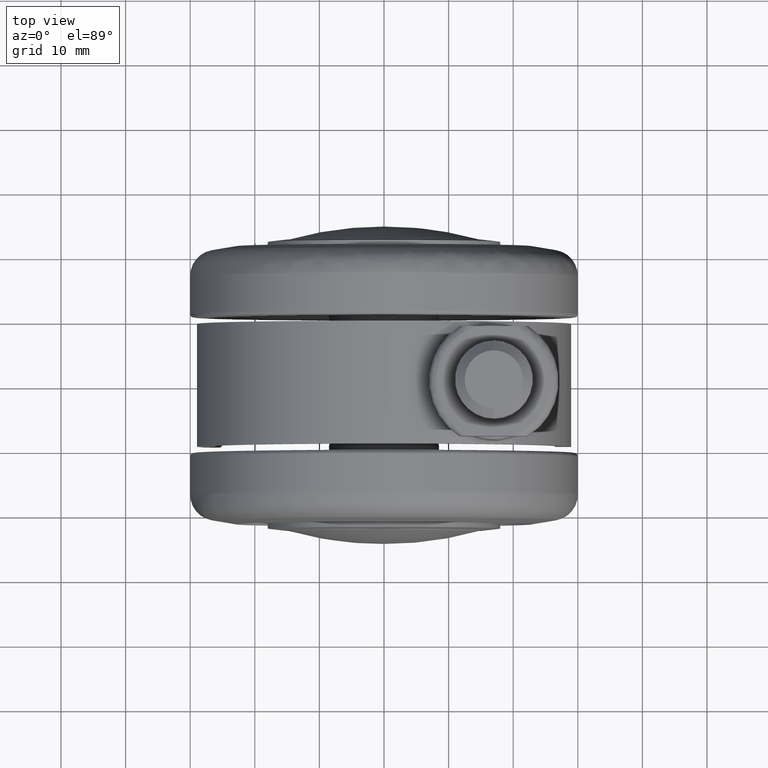
[diagram: clean part render]
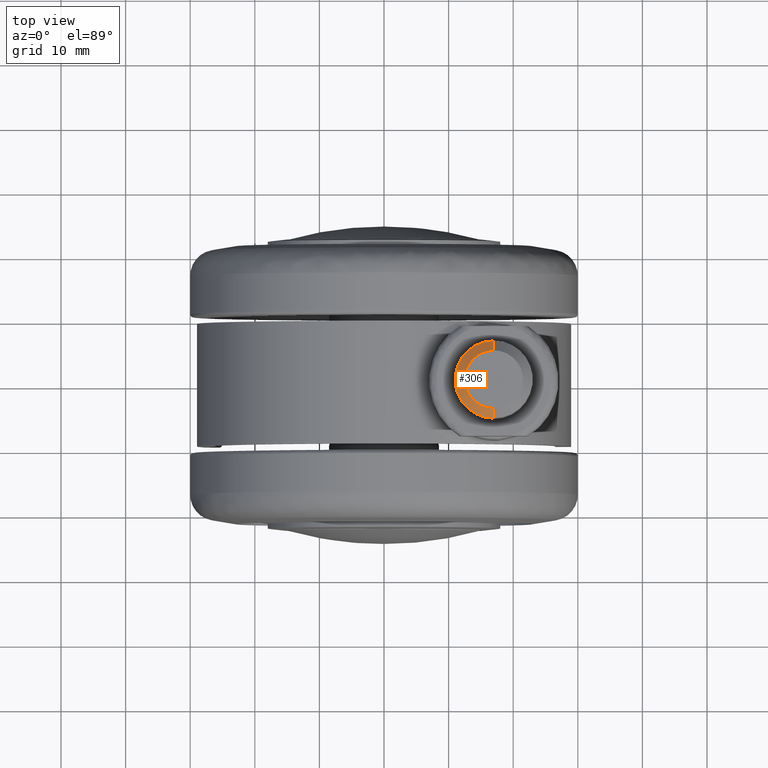
[diagram: same view with one face highlighted and labeled with its STEP entity id]
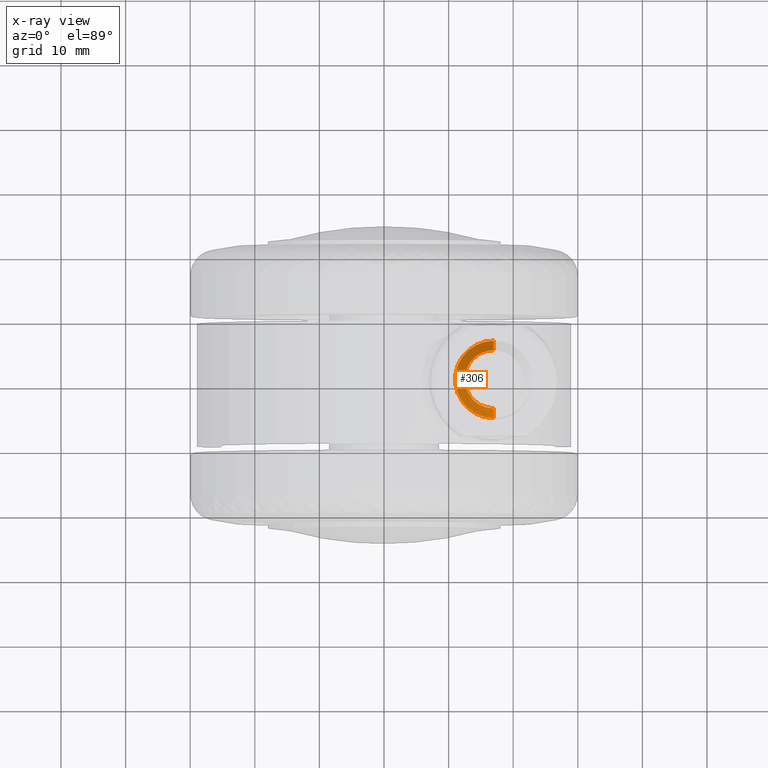
[diagram: x-ray of the same camera — body ghosted, the highlighted face saturated]
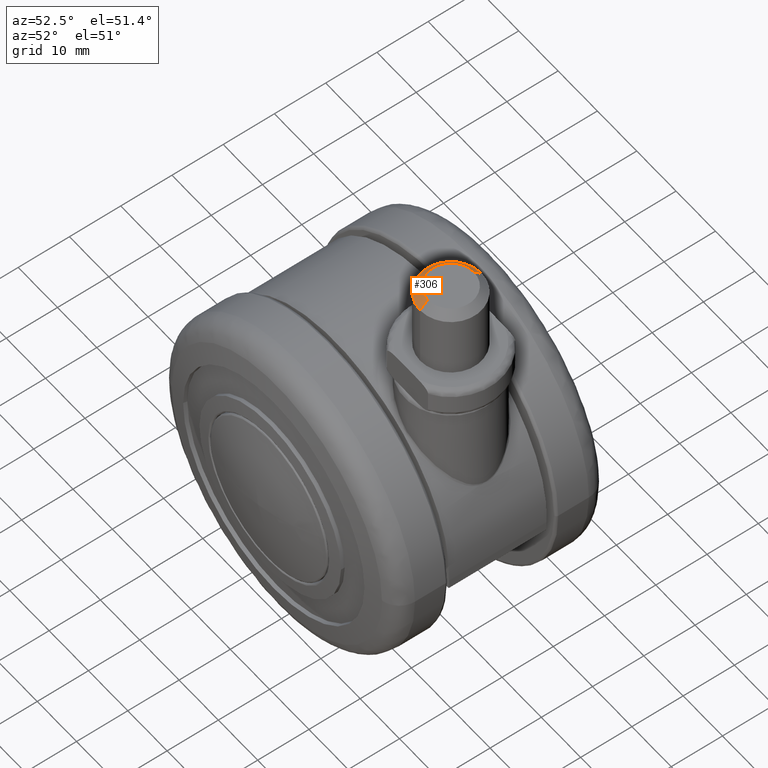
[diagram: same view with one face highlighted and labeled with its STEP entity id]
A machine part, top view. The second image highlights one B-rep face of the part: STEP entity #306.
The next image is the same camera in x-ray: the body ghosted, the highlighted face saturated — about 0% of this face is hidden behind the body in this view.
A second angle (auxiliary view) of the same face is appended — the face is thin or edge-on in the first view.
In plain terms, the highlighted face is a freeform B-spline surface patch.
Its self-contained STEP definition (entity closure, byte-faithful):
#306=ADVANCED_FACE('',(#1806),#1805,.T.);
#1805=( BOUNDED_SURFACE() B_SPLINE_SURFACE( 2,1,((#4484,#4485),(#4486,#4487),(#4488,#4489),(#4490,#4491),(#4492,#4493)), .UNSPECIFIED.,.F.,.F.,.F.) B_SPLINE_SURFACE_WITH_KNOTS((3,2,3),(2,2),(0.00000000000E+00,5.00000000000E-01,1.00000000000E+00),(0.00000000000E+00,1.00000000000E+00), .UNSPECIFIED. ) GEOMETRIC_REPRESENTATION_ITEM() RATIONAL_B_SPLINE_SURFACE(((1.00000000000E+00,1.00000000000E+00),(7.07106781187E-01,7.07106781187E-01),(1.00000000000E+00,1.00000000000E+00),(7.07106781187E-01,7.07106781187E-01),(1.00000000000E+00,1.00000000000E+00))) REPRESENTATION_ITEM('') SURFACE() );
#1806=FACE_OUTER_BOUND('',#4494,.T.);
#4484=CARTESIAN_POINT('',(-2.45000000000E+01,0.00000000000E+00,0.00000000000E+00));
#4485=CARTESIAN_POINT('',(-1.60147186258E+01,1.03914726748E-15,-8.48528137424E+00));
#4486=CARTESIAN_POINT('',(-2.45000000000E+01,0.00000000000E+00,0.00000000000E+00));
#4487=CARTESIAN_POINT('',(-1.60147186258E+01,8.48528137424E+00,-8.48528137424E+00));
#4488=CARTESIAN_POINT('',(-2.45000000000E+01,0.00000000000E+00,0.00000000000E+00));
#4489=CARTESIAN_POINT('',(-1.60147186258E+01,8.48528137424E+00,5.19573633741E-16));
#4490=CARTESIAN_POINT('',(-2.45000000000E+01,0.00000000000E+00,0.00000000000E+00));
#4491=CARTESIAN_POINT('',(-1.60147186258E+01,8.48528137424E+00,8.48528137424E+00));
#4492=CARTESIAN_POINT('',(-2.45000000000E+01,0.00000000000E+00,0.00000000000E+00));
#4493=CARTESIAN_POINT('',(-1.60147186258E+01,0.00000000000E+00,8.48528137424E+00));
#4494=EDGE_LOOP('',(#5217,#5218,#5219,#5220));
#5217=ORIENTED_EDGE('',*,*,#5565,.T.);
#5218=ORIENTED_EDGE('',*,*,#5582,.T.);
#5219=ORIENTED_EDGE('',*,*,#5578,.F.);
#5220=ORIENTED_EDGE('',*,*,#5583,.F.);
#5565=EDGE_CURVE('',#7869,#7868,#7876,.T.);
#5578=EDGE_CURVE('',#7958,#7959,#7960,.T.);
#5582=EDGE_CURVE('',#7868,#7959,#7984,.T.);
#5583=EDGE_CURVE('',#7869,#7958,#7990,.T.);
#7868=VERTEX_POINT('',#9952);
#7869=VERTEX_POINT('',#9953);
#7876=CIRCLE('',#9961,4.50000000000E+00);
#7958=VERTEX_POINT('',#10000);
#7959=VERTEX_POINT('',#10001);
#7960=CIRCLE('',#10005,6.00000000000E+00);
#7984=(BOUNDED_CURVE() B_SPLINE_CURVE(1,(#10014,#10015),.UNSPECIFIED.,.F.,.F.) B_SPLINE_CURVE_WITH_KNOTS((2,2),(5.30330088735E-01,7.07106783052E-01),.UNSPECIFIED.) CURVE() GEOMETRIC_REPRESENTATION_ITEM() RATIONAL_B_SPLINE_CURVE((1.00000000000E+00,1.00000000000E+00)) REPRESENTATION_ITEM('') );
#7990=(BOUNDED_CURVE() B_SPLINE_CURVE(1,(#10016,#10017),.UNSPECIFIED.,.F.,.F.) B_SPLINE_CURVE_WITH_KNOTS((2,2),(5.30330085350E-01,7.07106780467E-01),.UNSPECIFIED.) CURVE() GEOMETRIC_REPRESENTATION_ITEM() RATIONAL_B_SPLINE_CURVE((7.50000000000E-01,7.50000000000E-01)) REPRESENTATION_ITEM('') );
#9952=CARTESIAN_POINT('',(-2.00000000000E+01,2.96059473233E-16,4.50000000000E+00));
#9953=CARTESIAN_POINT('',(-2.00000000000E+01,0.00000000000E+00,-4.50000000000E+00));
#9958=CARTESIAN_POINT('',(-2.00000000000E+01,0.00000000000E+00,0.00000000000E+00));
#9959=DIRECTION('',(1.00000000000E+00,0.00000000000E+00,0.00000000000E+00));
#9960=DIRECTION('',(0.00000000000E+00,-1.22460635382E-16,-1.00000000000E+00));
#9961=AXIS2_PLACEMENT_3D('',#9958,#9959,#9960);
#10000=CARTESIAN_POINT('',(-1.85000000000E+01,0.00000000000E+00,-6.00000000000E+00));
#10001=CARTESIAN_POINT('',(-1.85000000000E+01,-2.96059473233E-16,6.00000000000E+00));
#10002=CARTESIAN_POINT('',(-1.85000000000E+01,0.00000000000E+00,0.00000000000E+00));
#10003=DIRECTION('',(1.00000000000E+00,0.00000000000E+00,0.00000000000E+00));
#10004=DIRECTION('',(0.00000000000E+00,-1.22460635382E-16,-1.00000000000E+00));
#10005=AXIS2_PLACEMENT_3D('',#10002,#10003,#10004);
#10014=CARTESIAN_POINT('',(-1.99999999759E+01,-1.10218212515E-15,4.50000002414E+00));
#10015=CARTESIAN_POINT('',(-1.84999999842E+01,-1.46957616285E-15,6.00000001583E+00));
#10016=CARTESIAN_POINT('',(-2.00000000046E+01,1.25607396567E-15,-4.49999999542E+00));
#10017=CARTESIAN_POINT('',(-1.85000000061E+01,1.67476528756E-15,-5.99999999390E+00));